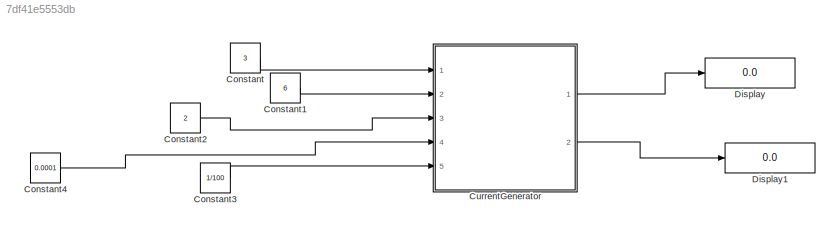
MODEL slx_7df41e5553db
KIND model
CONFIG AbsTol = auto
CONFIG FixedStep = auto
CONFIG MaxStep = auto
CONFIG MinStep = auto
CONFIG RelTol = 1e-3
CONFIG SampleTimeConstraint = Unconstrained
CONFIG Solver = VariableStepAuto
CONFIG SolverMode = Auto
CONFIG SolverName = VariableStepAuto
CONFIG StartTime = 0.0
CONFIG StopTime = 10.0
BLOCK [Constant] Constant
  Value = 3
BLOCK [Constant] Constant1
  Value = 6
BLOCK [Constant] Constant2
  Value = 2
BLOCK [Constant] Constant3
  Value = 1/100
BLOCK [Constant] Constant4
  Value = 0.0001
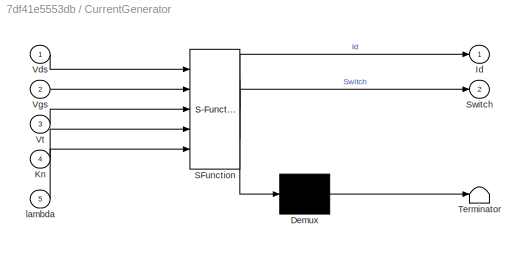
BLOCK [SubSystem] CurrentGenerator
  ErrorFcn = Stateflow.Translate.translate
  PermitHierarchicalResolution = ExplicitOnly
  Ports = [5, 2]
  RequestExecContextInheritance = off
  SFBlockType = MATLAB Function
  TreatAsAtomicUnit = on
  Variant = off
BLOCK [Demux] CurrentGenerator/ Demux 
  Outputs = 1
  Ports = [1, 1]
BLOCK [S-Function] CurrentGenerator/ SFunction 
  EnableBusSupport = on
  FunctionName = sf_sfun
  PortCounts = [5 3]
  Ports = [5, 3]
  SFunctionDeploymentMode = off
  Tag = Stateflow S-Function currentGenerator 2
BLOCK [Terminator] CurrentGenerator/ Terminator 
BLOCK [Outport] CurrentGenerator/Id
  IconDisplay = Port number
BLOCK [Inport] CurrentGenerator/Kn
  IconDisplay = Port number
  Port = 4
BLOCK [Outport] CurrentGenerator/Switch
  IconDisplay = Port number
  Port = 2
BLOCK [Inport] CurrentGenerator/Vds
  IconDisplay = Port number
BLOCK [Inport] CurrentGenerator/Vgs
  IconDisplay = Port number
  Port = 2
BLOCK [Inport] CurrentGenerator/Vt
  IconDisplay = Port number
  Port = 3
BLOCK [Inport] CurrentGenerator/lambda
  IconDisplay = Port number
  Port = 5
BLOCK [Display] Display
  Decimation = 1
  Ports = [1]
BLOCK [Display] Display1
  Decimation = 1
  Ports = [1]
LINE Constant1:1 -> CurrentGenerator:2
LINE Constant2:1 -> CurrentGenerator:3
LINE Constant3:1 -> CurrentGenerator:5
LINE Constant4:1 -> CurrentGenerator:4
LINE Constant:1 -> CurrentGenerator:1
LINE CurrentGenerator:1 -> Display:1
LINE CurrentGenerator:2 -> Display1:1
CHART CurrentGenerator states=1 transitions=1
  STATE_LABEL 'eML_blk_kernel()'
  STATE_LABEL 'SCRIPT:\nfunction [Id,Switch] = fcn(Vds,Vgs,Vt,Kn,lambda)\n%#codegen\n% Vds: Drain-to-source voltage in V\n% Vgs: Gate-to-source voltage in V\n% Vt: Threshold Voltage in V\n% Kn: Devices parameter in A/V^2\n% Lambda: Early voltage in V^-1\n\n% Id: Drain-to-Source Current\n% Switch : determines the on-off state of switch\nCurrent=0;\nSwitchStat=0;\nGSVt= Vgs-Vt; % it determines transistor on or off\n\nOnStat=Vds-...<+491ch>'
